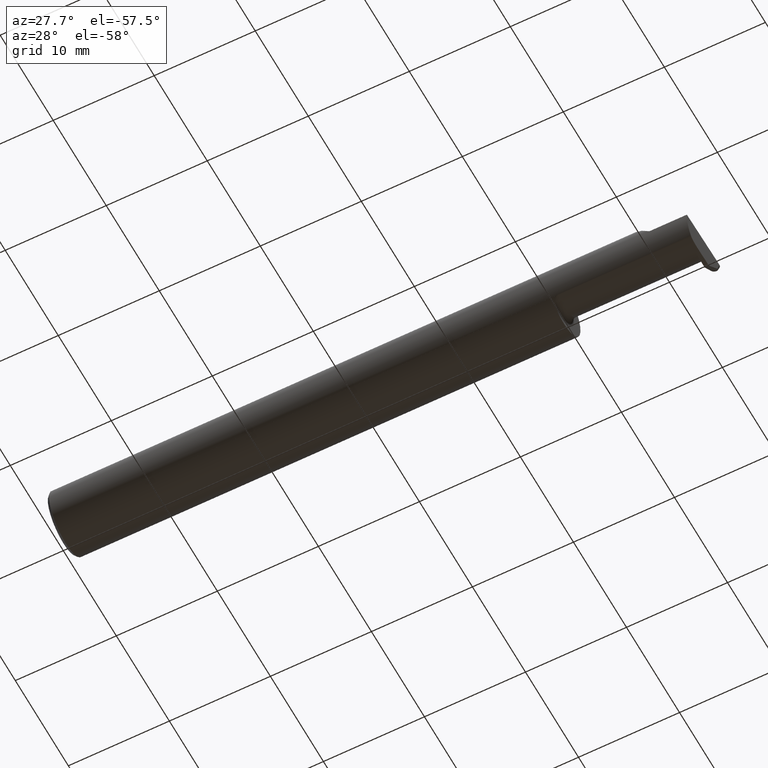
[diagram: clean part render]
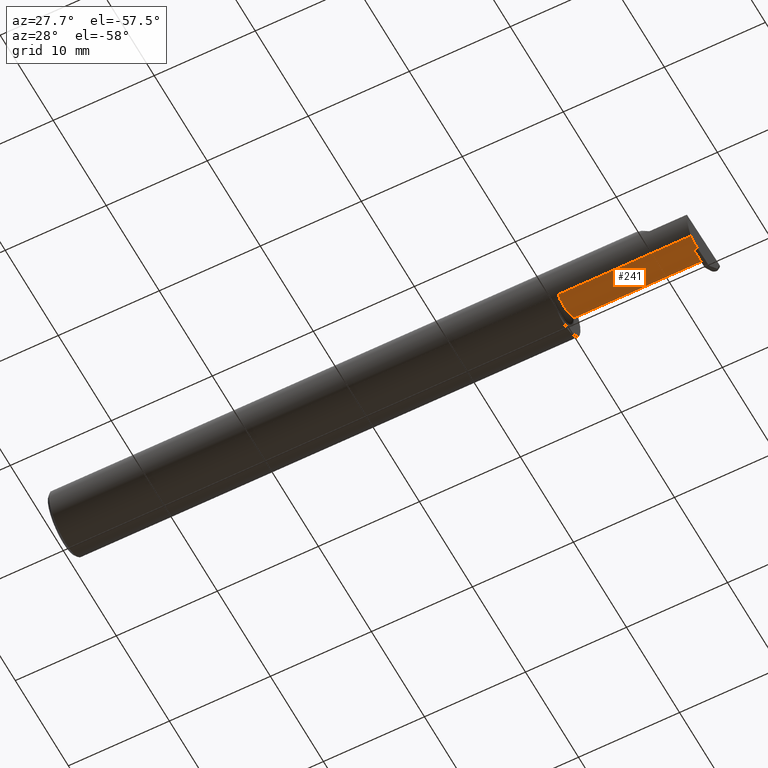
[diagram: same view with one face highlighted and labeled with its STEP entity id]
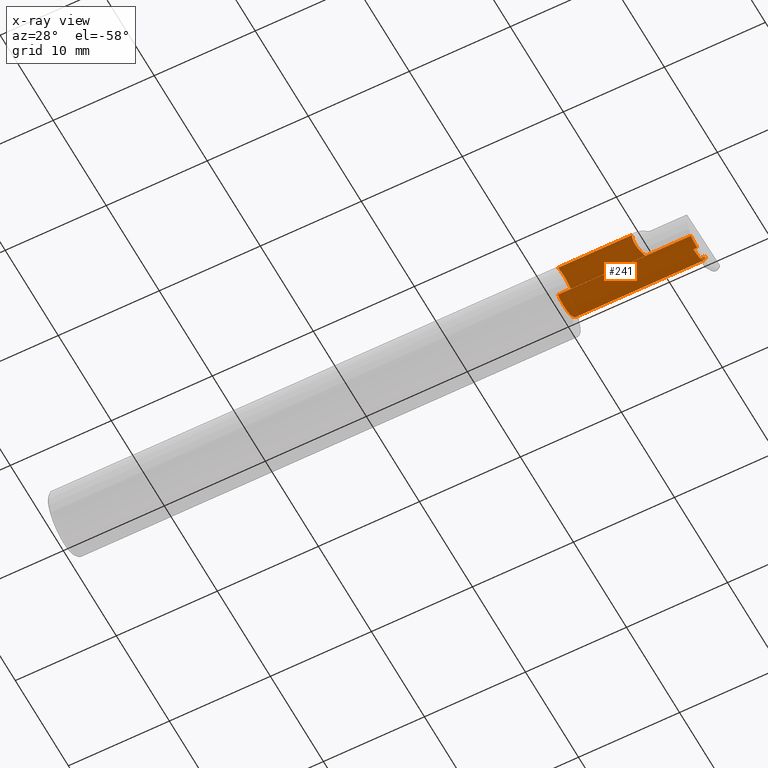
[diagram: x-ray of the same camera — body ghosted, the highlighted face saturated]
A machine part, auxiliary view. The second image highlights one B-rep face of the part: STEP entity #241.
The next image is the same camera in x-ray: the body ghosted, the highlighted face saturated — about 0% of this face is hidden behind the body in this view.
In plain terms, the highlighted cylindrical surface (edge-blend (fillet) strip) has radius 2.4892 mm, axis along (-1, -0, -0).
Its self-contained STEP definition (entity closure, byte-faithful):
#1 = CARTESIAN_POINT ( 'NONE',  ( 2.469171538508045938, 0.05392042564182090991, -0.002278711475641555326 ) ) ;
#4 = CARTESIAN_POINT ( 'NONE',  ( 2.479037770930199169, -0.04400000000000004602, -0.09800000000000003153 ) ) ;
#12 = DIRECTION ( 'NONE',  ( 0.000000000000000000, -1.000000000000000000, 0.000000000000000000 ) ) ;
#13 = ORIENTED_EDGE ( 'NONE', *, *, #568, .T. ) ;
#16 = CARTESIAN_POINT ( 'NONE',  ( 2.478970497252991567, 0.01027834358092152844, -0.09800000000000010092 ) ) ;
#20 = CARTESIAN_POINT ( 'NONE',  ( 2.477607449706652254, 0.04997501107658569586, -0.06098225869090267287 ) ) ;
#25 = CARTESIAN_POINT ( 'NONE',  ( 2.475680983646864952, 0.05376127692546277259, -0.006836134426924195436 ) ) ;
#42 = DIRECTION ( 'NONE',  ( -1.000000000000000000, -3.255450358112149836E-17, -0.000000000000000000 ) ) ;
#76 =( BOUNDED_CURVE ( )  B_SPLINE_CURVE ( 3, ( #291, #16, #20, #25 ),
 .UNSPECIFIED., .F., .T. ) 
 B_SPLINE_CURVE_WITH_KNOTS ( ( 4, 4 ),
 ( 3.176499238629678867, 4.677482395344803479 ),
 .UNSPECIFIED. ) 
 CURVE ( )  GEOMETRIC_REPRESENTATION_ITEM ( )  RATIONAL_B_SPLINE_CURVE ( ( 1.000000000000000000, 0.8209024677461134178, 0.8209024677461134178, 1.000000000000000000 ) ) 
 REPRESENTATION_ITEM ( '' )  );
#82 = ORIENTED_EDGE ( 'NONE', *, *, #333, .F. ) ;
#94 = CARTESIAN_POINT ( 'NONE',  ( 2.224355642859858762, -0.01728409361947872563, 0.1256443571401404669 ) ) ;
#102 = EDGE_CURVE ( 'NONE', #374, #390, #309, .T. ) ;
#110 = ORIENTED_EDGE ( 'NONE', *, *, #508, .F. ) ;
#128 = CARTESIAN_POINT ( 'NONE',  ( 2.469012389791687578, 0.05376127692546275177, -0.006836134426924675087 ) ) ;
#137 = VERTEX_POINT ( 'NONE', #272 ) ;
#142 = CARTESIAN_POINT ( 'NONE',  ( 2.672413070268786939, -0.04399999999999996969, -0.09800000000000001765 ) ) ;
#143 = CARTESIAN_POINT ( 'NONE',  ( 2.224737910000000429, -0.09042045454545435956, 0.08630840862739518060 ) ) ;
#183 = VERTEX_POINT ( 'NONE', #4 ) ;
#189 = CIRCLE ( 'NONE', #271, 0.09800000000000005929 ) ;
#192 = ORIENTED_EDGE ( 'NONE', *, *, #633, .F. ) ;
#213 = VECTOR ( 'NONE', #400, 39.37007874015748143 ) ;
#216 = VERTEX_POINT ( 'NONE', #594 ) ;
#228 = FACE_OUTER_BOUND ( 'NONE', #244, .T. ) ;
#241 = ADVANCED_FACE ( 'NONE', ( #228 ), #384, .T. ) ;
#244 = EDGE_LOOP ( 'NONE', ( #577, #110, #425, #13, #506, #639, #288, #82, #192, #407 ) ) ;
#246 = CARTESIAN_POINT ( 'NONE',  ( 2.493620144954195261, -0.06028551311893192571, -0.09800000000000008704 ) ) ;
#253 = CARTESIAN_POINT ( 'NONE',  ( 2.263691591372603895, -0.09042045454545441507, 0.08630840862739512509 ) ) ;
#256 = CARTESIAN_POINT ( 'NONE',  ( 2.469012389791687578, 0.05376127692546275177, -0.006836134426924675087 ) ) ;
#271 = AXIS2_PLACEMENT_3D ( 'NONE', #687, #42, #638 ) ;
#272 = CARTESIAN_POINT ( 'NONE',  ( 2.493904409643075581, -0.04399999999999996969, -0.09800000000000001765 ) ) ;
#288 = ORIENTED_EDGE ( 'NONE', *, *, #406, .F. ) ;
#291 = CARTESIAN_POINT ( 'NONE',  ( 2.479037770930199169, -0.04400000000000004602, -0.09800000000000003153 ) ) ;
#294 = CARTESIAN_POINT ( 'NONE',  ( 2.350000000000000089, 0.05399999999999999245, 6.735557395310437586E-17 ) ) ;
#299 = CARTESIAN_POINT ( 'NONE',  ( 2.493502479154699358, -0.09042045454545434569, -0.08630840862739518060 ) ) ;
#303 = EDGE_CURVE ( 'NONE', #551, #415, #504, .T. ) ;
#308 = CARTESIAN_POINT ( 'NONE',  ( 1.949999999999999956, 0.05376127692546280035, -0.006836134426923812929 ) ) ;
#309 = B_SPLINE_CURVE_WITH_KNOTS ( 'NONE', 3,
 ( #256, #489, #1, #428 ),
 .UNSPECIFIED., .F., .F.,
 ( 4, 4 ),
 ( 0.000000000000000000, 1.000000000000000000 ),
 .UNSPECIFIED. ) ;
#329 = DIRECTION ( 'NONE',  ( -1.000000000000000000, -3.255450358112149836E-17, -0.000000000000000000 ) ) ;
#331 = CARTESIAN_POINT ( 'NONE',  ( 2.493502479154699358, -0.09042045454545434569, -0.08630840862739518060 ) ) ;
#333 = EDGE_CURVE ( 'NONE', #183, #480, #76, .T. ) ;
#338 = VECTOR ( 'NONE', #689, 39.37007874015748143 ) ;
#346 = CARTESIAN_POINT ( 'NONE',  ( 1.974999999999999867, -0.09042045454545430405, 0.08630840862739520836 ) ) ;
#350 = LINE ( 'NONE', #308, #338 ) ;
#367 = EDGE_CURVE ( 'NONE', #551, #137, #441, .T. ) ;
#374 = VERTEX_POINT ( 'NONE', #128 ) ;
#377 = EDGE_CURVE ( 'NONE', #624, #677, #684, .T. ) ;
#379 = CARTESIAN_POINT ( 'NONE',  ( 1.974999999999999867, -0.09042045454545437344, -0.08630840862739515285 ) ) ;
#381 = CARTESIAN_POINT ( 'NONE',  ( 2.263691591372603895, -0.09042045454545441507, 0.08630840862739512509 ) ) ;
#384 = CYLINDRICAL_SURFACE ( 'NONE', #387, 0.09800000000000005929 ) ;
#387 = AXIS2_PLACEMENT_3D ( 'NONE', #495, #329, #12 ) ;
#390 = VERTEX_POINT ( 'NONE', #574 ) ;
#400 = DIRECTION ( 'NONE',  ( -1.000000000000000000, -3.255450358112149836E-17, -0.000000000000000000 ) ) ;
#404 = LINE ( 'NONE', #142, #436 ) ;
#406 = EDGE_CURVE ( 'NONE', #480, #374, #350, .T. ) ;
#407 = ORIENTED_EDGE ( 'NONE', *, *, #367, .F. ) ;
#415 = VERTEX_POINT ( 'NONE', #379 ) ;
#420 = CARTESIAN_POINT ( 'NONE',  ( 2.493904409643075581, -0.04399999999999996969, -0.09800000000000001765 ) ) ;
#425 = ORIENTED_EDGE ( 'NONE', *, *, #377, .T. ) ;
#428 = CARTESIAN_POINT ( 'NONE',  ( 2.469251112866224673, 0.05399999999999999245, 0.000000000000000000 ) ) ;
#436 = VECTOR ( 'NONE', #622, 39.37007874015748143 ) ;
#437 =( BOUNDED_CURVE ( )  B_SPLINE_CURVE ( 3, ( #253, #94, #473, #294 ),
 .UNSPECIFIED., .F., .T. ) 
 B_SPLINE_CURVE_WITH_KNOTS ( ( 4, 4 ),
 ( 5.789722842198295361, 7.853981633974482790 ),
 .UNSPECIFIED. ) 
 CURVE ( )  GEOMETRIC_REPRESENTATION_ITEM ( )  RATIONAL_B_SPLINE_CURVE ( ( 1.000000000000000000, 0.6753281001527242644, 0.6753281001527242644, 1.000000000000000000 ) ) 
 REPRESENTATION_ITEM ( '' )  );
#441 =( BOUNDED_CURVE ( )  B_SPLINE_CURVE ( 3, ( #331, #553, #246, #420 ),
 .UNSPECIFIED., .F., .F. ) 
 B_SPLINE_CURVE_WITH_KNOTS ( ( 4, 4 ),
 ( 6.253187659403682375, 6.746650124384973246 ),
 .UNSPECIFIED. ) 
 CURVE ( )  GEOMETRIC_REPRESENTATION_ITEM ( )  RATIONAL_B_SPLINE_CURVE ( ( 1.000000000000000000, 0.9798106333074687591, 0.9798106333074687591, 1.000000000000000000 ) ) 
 REPRESENTATION_ITEM ( '' )  );
#473 = CARTESIAN_POINT ( 'NONE',  ( 2.266956372099407258, 0.05399999999999999245, 0.08304362790059179045 ) ) ;
#480 = VERTEX_POINT ( 'NONE', #522 ) ;
#489 = CARTESIAN_POINT ( 'NONE',  ( 2.469091964149866314, 0.05384085128364183431, -0.004557422951283111520 ) ) ;
#495 = CARTESIAN_POINT ( 'NONE',  ( 1.949999999999999956, -0.04400000000000006684, 0.000000000000000000 ) ) ;
#504 = LINE ( 'NONE', #606, #213 ) ;
#506 = ORIENTED_EDGE ( 'NONE', *, *, #510, .T. ) ;
#508 = EDGE_CURVE ( 'NONE', #624, #415, #189, .T. ) ;
#510 = EDGE_CURVE ( 'NONE', #216, #390, #516, .T. ) ;
#516 = LINE ( 'NONE', #566, #673 ) ;
#522 = CARTESIAN_POINT ( 'NONE',  ( 2.475680983646864952, 0.05376127692546277259, -0.006836134426924195436 ) ) ;
#551 = VERTEX_POINT ( 'NONE', #299 ) ;
#553 = CARTESIAN_POINT ( 'NONE',  ( 2.493483407481765113, -0.07607783494366271437, -0.09402249966297457351 ) ) ;
#566 = CARTESIAN_POINT ( 'NONE',  ( 1.949999999999999956, 0.05399999999999997163, 6.735557395310437586E-17 ) ) ;
#568 = EDGE_CURVE ( 'NONE', #677, #216, #437, .T. ) ;
#574 = CARTESIAN_POINT ( 'NONE',  ( 2.469251112866224673, 0.05399999999999999245, 0.000000000000000000 ) ) ;
#577 = ORIENTED_EDGE ( 'NONE', *, *, #303, .T. ) ;
#594 = CARTESIAN_POINT ( 'NONE',  ( 2.350000000000000089, 0.05399999999999999245, 6.735557395310437586E-17 ) ) ;
#606 = CARTESIAN_POINT ( 'NONE',  ( 2.224737910000000429, -0.09042045454545435956, -0.08630840862739518060 ) ) ;
#622 = DIRECTION ( 'NONE',  ( -1.000000000000000000, -0.000000000000000000, -0.000000000000000000 ) ) ;
#624 = VERTEX_POINT ( 'NONE', #346 ) ;
#630 = DIRECTION ( 'NONE',  ( 1.000000000000000000, 3.255450358112149836E-17, 0.000000000000000000 ) ) ;
#633 = EDGE_CURVE ( 'NONE', #137, #183, #404, .T. ) ;
#638 = DIRECTION ( 'NONE',  ( 0.000000000000000000, -1.000000000000000000, 0.000000000000000000 ) ) ;
#639 = ORIENTED_EDGE ( 'NONE', *, *, #102, .F. ) ;
#650 = DIRECTION ( 'NONE',  ( 1.000000000000000000, 3.255450358112149836E-17, 0.000000000000000000 ) ) ;
#673 = VECTOR ( 'NONE', #630, 39.37007874015748143 ) ;
#677 = VERTEX_POINT ( 'NONE', #381 ) ;
#684 = LINE ( 'NONE', #143, #698 ) ;
#687 = CARTESIAN_POINT ( 'NONE',  ( 1.974999999999999867, -0.04400000000000006684, 0.000000000000000000 ) ) ;
#689 = DIRECTION ( 'NONE',  ( -1.000000000000000000, -3.255450358112149836E-17, -0.000000000000000000 ) ) ;
#698 = VECTOR ( 'NONE', #650, 39.37007874015748143 ) ;